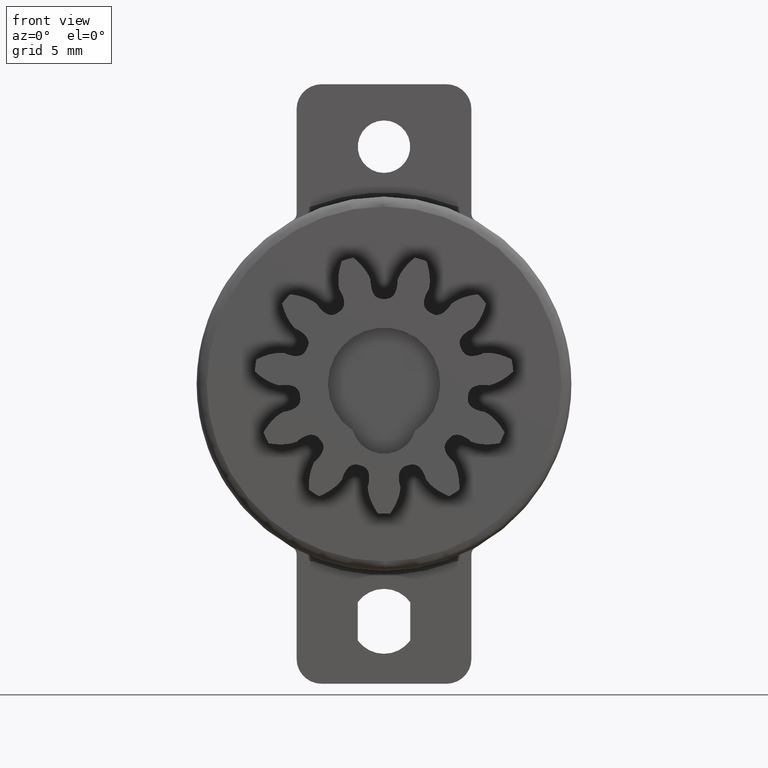
[diagram: clean part render]
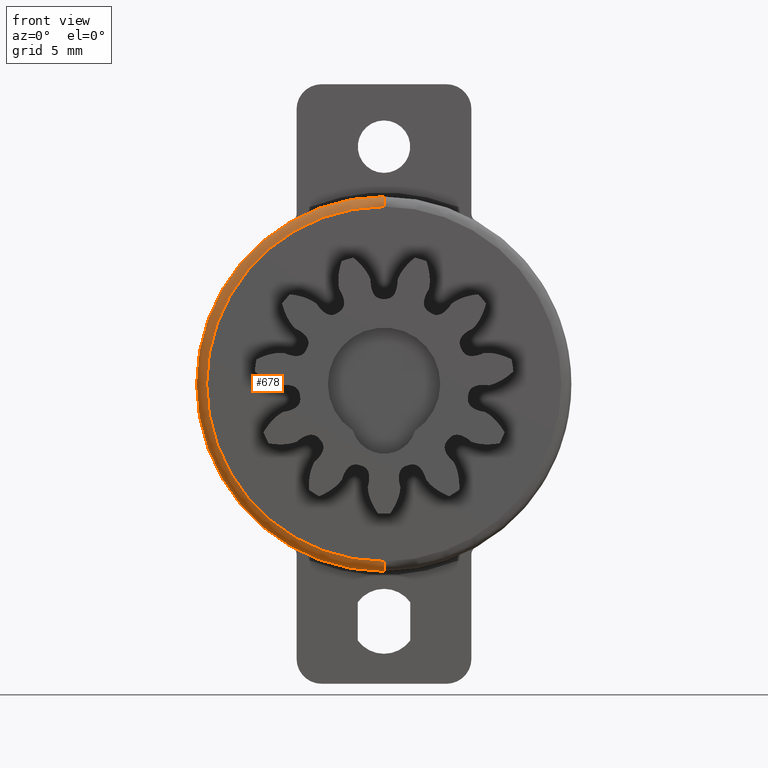
[diagram: same view with one face highlighted and labeled with its STEP entity id]
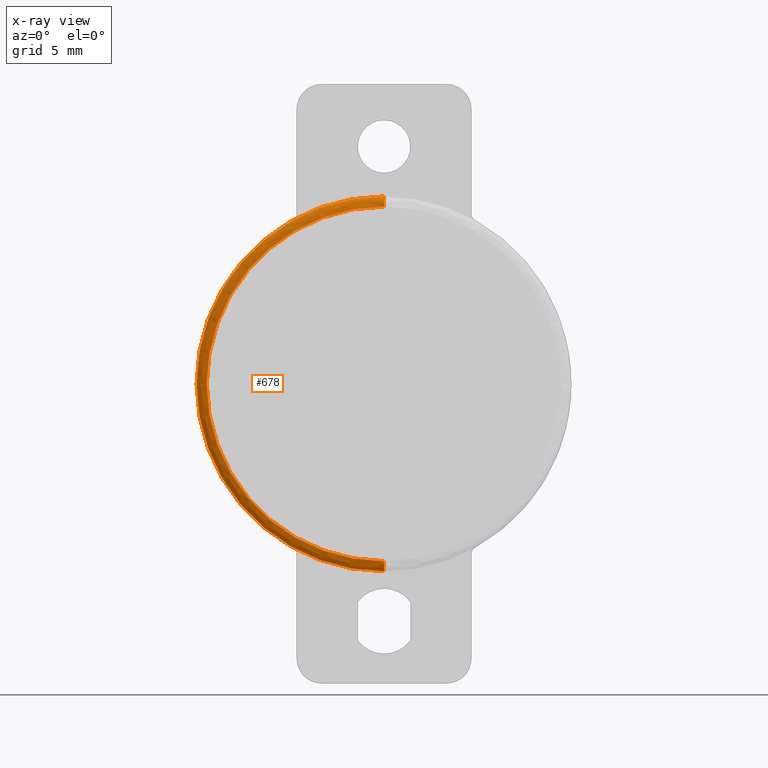
[diagram: x-ray of the same camera — body ghosted, the highlighted face saturated]
A machine part, front view. The second image highlights one B-rep face of the part: STEP entity #678.
The next image is the same camera in x-ray: the body ghosted, the highlighted face saturated — about 0% of this face is hidden behind the body in this view.
In plain terms, the highlighted face is a freeform B-spline surface patch.
Its self-contained STEP definition (entity closure, byte-faithful):
#678=ADVANCED_FACE('',(#7073),#7072,.T.);
#7072=( BOUNDED_SURFACE() B_SPLINE_SURFACE( 2,2,((#10386,#10387,#10388,#10389,#10390),(#10391,#10392,#10393,#10394,#10395),(#10396,#10397,#10398,#10399,#10400),(#10401,#10402,#10403,#10404,#10405),(#10406,#10407,#10408,#10409,#10410)), .UNSPECIFIED.,.F.,.F.,.F.) B_SPLINE_SURFACE_WITH_KNOTS((3,2,3),(3,2,3),(0.00000000000E+00,5.00000000000E-01,1.00000000000E+00),(0.00000000000E+00,5.00000000000E-01,1.00000000000E+00), .UNSPECIFIED. ) GEOMETRIC_REPRESENTATION_ITEM() RATIONAL_B_SPLINE_SURFACE(((1.00000000000E+00,7.07106765760E-01,1.00000000000E+00,7.07106765760E-01,1.00000000000E+00),(7.07106781187E-01,4.99999989092E-01,7.07106781187E-01,4.99999989092E-01,7.07106781187E-01),(1.00000000000E+00,7.07106765760E-01,1.00000000000E+00,7.07106765760E-01,1.00000000000E+00),(7.07106781187E-01,4.99999989092E-01,7.07106781187E-01,4.99999989092E-01,7.07106781187E-01),(1.00000000000E+00,7.07106765760E-01,1.00000000000E+00,7.07106765760E-01,1.00000000000E+00))) REPRESENTATION_ITEM('') SURFACE() );
#7073=FACE_OUTER_BOUND('',#10411,.T.);
#10386=CARTESIAN_POINT('',(-9.18454768314E-16,-2.99999995499E+00,7.50000002407E+00));
#10387=CARTESIAN_POINT('',(-9.18454768314E-16,-3.40000001745E+00,7.50000002407E+00));
#10388=CARTESIAN_POINT('',(-8.69470506512E-16,-3.40000000000E+00,7.09999996160E+00));
#10389=CARTESIAN_POINT('',(-8.20486244709E-16,-3.39999998255E+00,6.69999989914E+00));
#10390=CARTESIAN_POINT('',(-8.20486248984E-16,-2.99999992008E+00,6.69999993404E+00));
#10391=CARTESIAN_POINT('',(-7.50000002407E+00,-2.99999995499E+00,7.50000002407E+00));
#10392=CARTESIAN_POINT('',(-7.50000002407E+00,-3.40000001745E+00,7.50000002407E+00));
#10393=CARTESIAN_POINT('',(-7.09999996160E+00,-3.40000000000E+00,7.09999996160E+00));
#10394=CARTESIAN_POINT('',(-6.69999989914E+00,-3.39999998255E+00,6.69999989914E+00));
#10395=CARTESIAN_POINT('',(-6.69999993404E+00,-2.99999992008E+00,6.69999993404E+00));
#10396=CARTESIAN_POINT('',(-7.50000002407E+00,-2.99999995499E+00,-4.59212217160E-16));
#10397=CARTESIAN_POINT('',(-7.50000002407E+00,-3.40000001745E+00,-4.59212217160E-16));
#10398=CARTESIAN_POINT('',(-7.09999996160E+00,-3.40000000000E+00,-4.34720895166E-16));
#10399=CARTESIAN_POINT('',(-6.69999989914E+00,-3.39999998255E+00,-4.10229573171E-16));
#10400=CARTESIAN_POINT('',(-6.69999993404E+00,-2.99999992008E+00,-4.10229575308E-16));
#10401=CARTESIAN_POINT('',(-7.50000002407E+00,-2.99999995499E+00,-7.50000002407E+00));
#10402=CARTESIAN_POINT('',(-7.50000002407E+00,-3.40000001745E+00,-7.50000002407E+00));
#10403=CARTESIAN_POINT('',(-7.09999996160E+00,-3.40000000000E+00,-7.09999996160E+00));
#10404=CARTESIAN_POINT('',(-6.69999989914E+00,-3.39999998255E+00,-6.69999989914E+00));
#10405=CARTESIAN_POINT('',(-6.69999993404E+00,-2.99999992008E+00,-6.69999993404E+00));
#10406=CARTESIAN_POINT('',(-3.03339938293E-20,-2.99999995499E+00,-7.50000002407E+00));
#10407=CARTESIAN_POINT('',(-3.03339938293E-20,-3.40000001745E+00,-7.50000002407E+00));
#10408=CARTESIAN_POINT('',(-2.87161805777E-20,-3.40000000000E+00,-7.09999996160E+00));
#10409=CARTESIAN_POINT('',(-2.70983673260E-20,-3.39999998255E+00,-6.69999989914E+00));
#10410=CARTESIAN_POINT('',(-2.70983674672E-20,-2.99999992008E+00,-6.69999993404E+00));
#10411=EDGE_LOOP('',(#14242,#14243,#14244,#14245));
#14242=ORIENTED_EDGE('',*,*,#14315,.F.);
#14243=ORIENTED_EDGE('',*,*,#16174,.F.);
#14244=ORIENTED_EDGE('',*,*,#16175,.T.);
#14245=ORIENTED_EDGE('',*,*,#16176,.T.);
#14315=EDGE_CURVE('',#16460,#16459,#16467,.T.);
#16174=EDGE_CURVE('',#28850,#16460,#28851,.T.);
#16175=EDGE_CURVE('',#28850,#28857,#28858,.T.);
#16176=EDGE_CURVE('',#28857,#16459,#28864,.T.);
#16459=VERTEX_POINT('',#29083);
#16460=VERTEX_POINT('',#29084);
#16467=CIRCLE('',#29092,7.10000000000E+00);
#28850=VERTEX_POINT('',#36012);
#28851=(BOUNDED_CURVE() B_SPLINE_CURVE(2,(#36013,#36014,#36015),.UNSPECIFIED.,.F.,.F.) B_SPLINE_CURVE_WITH_KNOTS((3,3),(0.00000000000E+00,4.99999960263E-01),.UNSPECIFIED.) CURVE() GEOMETRIC_REPRESENTATION_ITEM() RATIONAL_B_SPLINE_CURVE((1.00000000000E+00,7.07106765760E-01,1.00000000000E+00)) REPRESENTATION_ITEM('') );
#28857=VERTEX_POINT('',#36016);
#28858=CIRCLE('',#36020,7.50000002407E+00);
#28864=(BOUNDED_CURVE() B_SPLINE_CURVE(2,(#36021,#36022,#36023),.UNSPECIFIED.,.F.,.F.) B_SPLINE_CURVE_WITH_KNOTS((3,3),(0.00000000000E+00,5.00000000000E-01),.UNSPECIFIED.) CURVE() GEOMETRIC_REPRESENTATION_ITEM() RATIONAL_B_SPLINE_CURVE((7.50000000000E-01,5.30330074320E-01,7.50000000000E-01)) REPRESENTATION_ITEM('') );
#29083=CARTESIAN_POINT('',(0.00000000000E+00,-3.40000000000E+00,-7.10000000000E+00));
#29084=CARTESIAN_POINT('',(2.96059473233E-16,-3.40000000000E+00,7.10000000000E+00));
#29089=CARTESIAN_POINT('',(0.00000000000E+00,-3.40000000000E+00,0.00000000000E+00));
#29090=DIRECTION('',(0.00000000000E+00,-1.00000000000E+00,-0.00000000000E+00));
#29091=DIRECTION('',(-1.22460635382E-16,0.00000000000E+00,-1.00000000000E+00));
#29092=AXIS2_PLACEMENT_3D('',#29089,#29090,#29091);
#36012=CARTESIAN_POINT('',(8.88178419700E-16,-2.99999992008E+00,7.50000002407E+00));
#36013=CARTESIAN_POINT('',(-9.18454768314E-16,-2.99999995499E+00,7.50000002407E+00));
#36014=CARTESIAN_POINT('',(-9.18454768314E-16,-3.40000001745E+00,7.50000002407E+00));
#36015=CARTESIAN_POINT('',(-8.69470506512E-16,-3.40000000000E+00,7.09999996160E+00));
#36016=CARTESIAN_POINT('',(0.00000000000E+00,-2.99999992008E+00,-7.50000002407E+00));
#36017=CARTESIAN_POINT('',(0.00000000000E+00,-2.99999992008E+00,0.00000000000E+00));
#36018=DIRECTION('',(0.00000000000E+00,-1.00000000000E+00,-0.00000000000E+00));
#36019=DIRECTION('',(-1.22460635382E-16,0.00000000000E+00,-1.00000000000E+00));
#36020=AXIS2_PLACEMENT_3D('',#36017,#36018,#36019);
#36021=CARTESIAN_POINT('',(1.48029736617E-15,-2.99999995499E+00,-7.50000002407E+00));
#36022=CARTESIAN_POINT('',(8.37382662900E-16,-3.40000001745E+00,-7.50000002407E+00));
#36023=CARTESIAN_POINT('',(5.92118946467E-16,-3.40000000000E+00,-7.09999996160E+00));